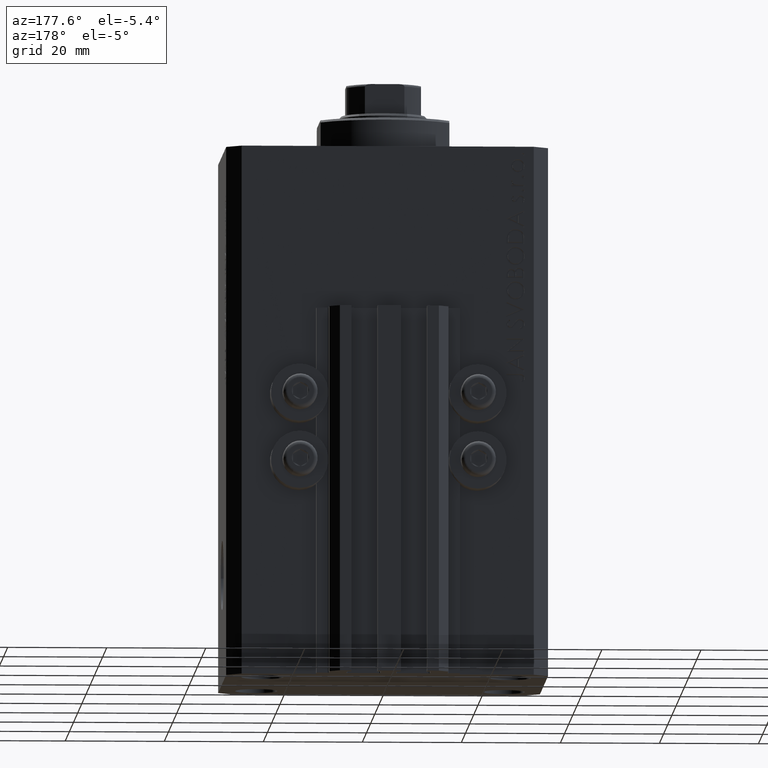
[diagram: clean part render]
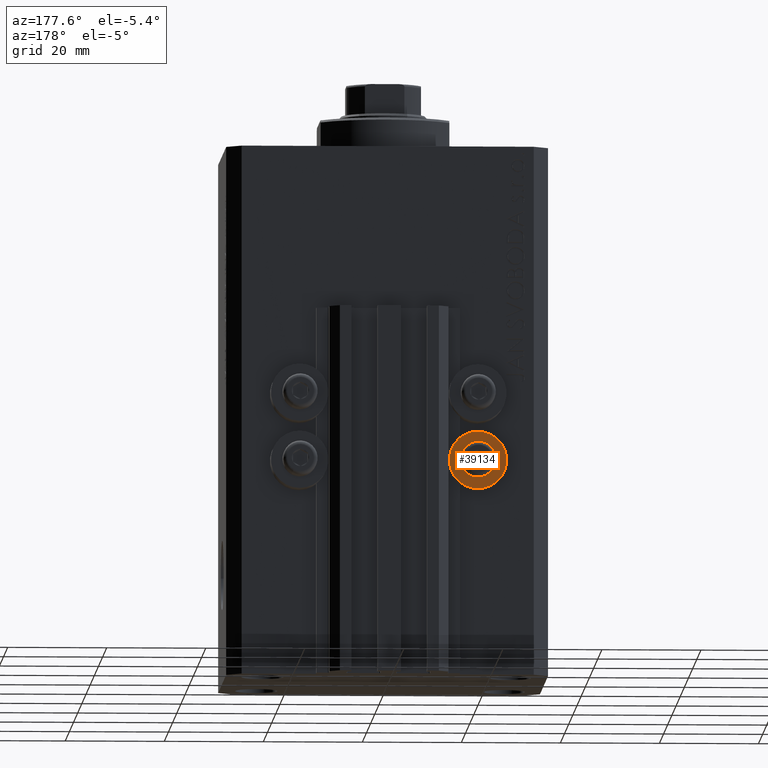
[diagram: same view with one face highlighted and labeled with its STEP entity id]
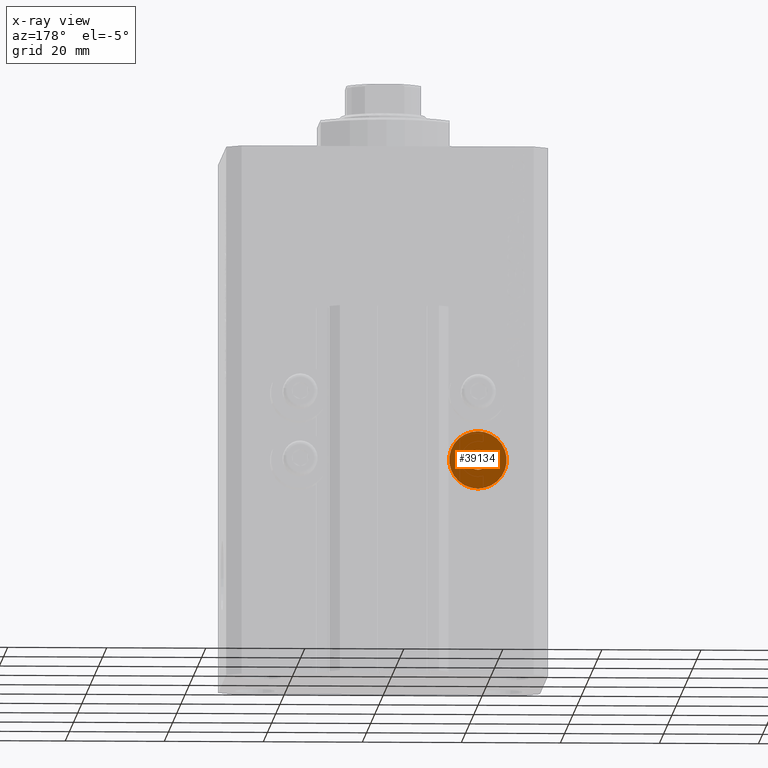
[diagram: x-ray of the same camera — body ghosted, the highlighted face saturated]
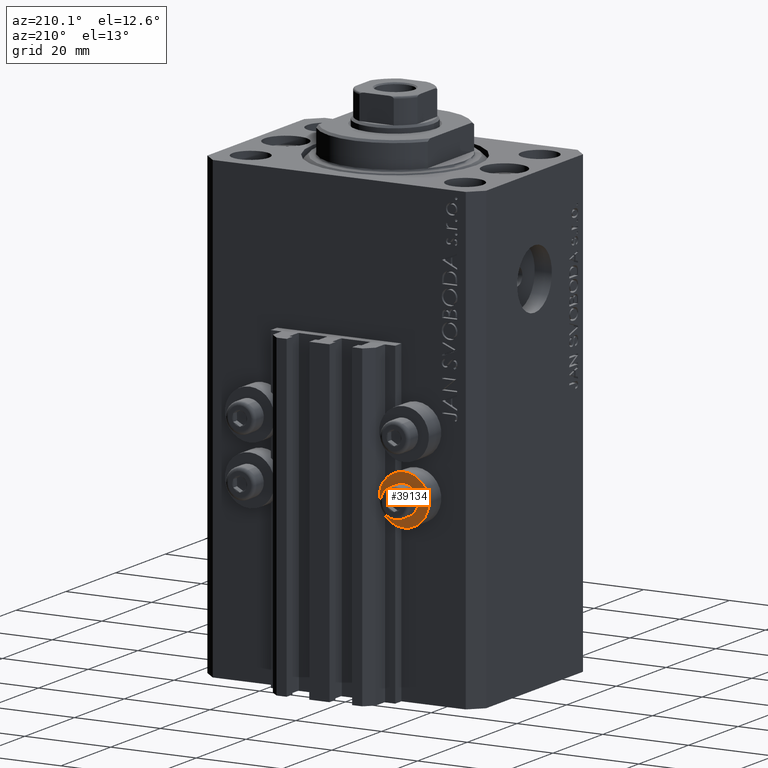
[diagram: same view with one face highlighted and labeled with its STEP entity id]
A machine part, auxiliary view. The second image highlights one B-rep face of the part: STEP entity #39134.
The next image is the same camera in x-ray: the body ghosted, the highlighted face saturated — about 0% of this face is hidden behind the body in this view.
A second angle (auxiliary view) of the same face is appended — the face is thin or edge-on in the first view.
In plain terms, the highlighted planar face has unit normal (0, -1, 0).
Its self-contained STEP definition (entity closure, byte-faithful):
#261 = CARTESIAN_POINT ( 'NONE',  ( -18.00000000000000355, 27.49999999996051514, -62.00000000000000000 ) ) ;
#390 = EDGE_CURVE ( 'NONE', #18551, #41907, #4273, .T. ) ;
#907 = CIRCLE ( 'NONE', #14612, 5.799999999999999822 ) ;
#2386 = DIRECTION ( 'NONE',  ( -0.000000000000000000, -1.000000000000000000, -0.000000000000000000 ) ) ;
#2475 = CARTESIAN_POINT ( 'NONE',  ( -18.00000000000000355, 27.49999999996051514, -64.00000000000000000 ) ) ;
#2870 = CIRCLE ( 'NONE', #46320, 2.000000000000001776 ) ;
#3981 = VERTEX_POINT ( 'NONE', #45229 ) ;
#4273 = CIRCLE ( 'NONE', #15685, 2.000000000000001776 ) ;
#4771 = EDGE_CURVE ( 'NONE', #35098, #3981, #37187, .T. ) ;
#7685 = CARTESIAN_POINT ( 'NONE',  ( -18.00000000000000355, 27.49999999996051514, -64.00000000000000000 ) ) ;
#8342 = EDGE_CURVE ( 'NONE', #41907, #18551, #2870, .T. ) ;
#13142 = PLANE ( 'NONE',  #45510 ) ;
#14612 = AXIS2_PLACEMENT_3D ( 'NONE', #2475, #16763, #20342 ) ;
#14819 = DIRECTION ( 'NONE',  ( -0.000000000000000000, -1.000000000000000000, -0.000000000000000000 ) ) ;
#14940 = DIRECTION ( 'NONE',  ( -0.000000000000000000, -1.000000000000000000, -0.000000000000000000 ) ) ;
#15633 = DIRECTION ( 'NONE',  ( 0.000000000000000000, 0.000000000000000000, -1.000000000000000000 ) ) ;
#15685 = AXIS2_PLACEMENT_3D ( 'NONE', #7685, #14819, #37031 ) ;
#15873 = CARTESIAN_POINT ( 'NONE',  ( -18.00000000000000355, 27.49999999996051514, -64.00000000000000000 ) ) ;
#16763 = DIRECTION ( 'NONE',  ( -0.000000000000000000, -1.000000000000000000, -0.000000000000000000 ) ) ;
#18551 = VERTEX_POINT ( 'NONE', #19244 ) ;
#19142 = EDGE_CURVE ( 'NONE', #3981, #35098, #907, .T. ) ;
#19244 = CARTESIAN_POINT ( 'NONE',  ( -18.00000000000000355, 27.49999999996051514, -66.00000000000000000 ) ) ;
#20151 = ORIENTED_EDGE ( 'NONE', *, *, #390, .T. ) ;
#20342 = DIRECTION ( 'NONE',  ( 0.000000000000000000, 0.000000000000000000, -1.000000000000000000 ) ) ;
#22349 = ORIENTED_EDGE ( 'NONE', *, *, #19142, .F. ) ;
#23538 = CARTESIAN_POINT ( 'NONE',  ( -18.00000000000000355, 27.49999999996051514, -69.79999999999999716 ) ) ;
#24101 = DIRECTION ( 'NONE',  ( 0.000000000000000000, 0.000000000000000000, 1.000000000000000000 ) ) ;
#24300 = DIRECTION ( 'NONE',  ( 0.000000000000000000, 0.000000000000000000, -1.000000000000000000 ) ) ;
#27674 = CARTESIAN_POINT ( 'NONE',  ( -12.20000000000000284, 27.49999999996051514, -64.00000000000000000 ) ) ;
#28761 = AXIS2_PLACEMENT_3D ( 'NONE', #42480, #2386, #24300 ) ;
#28957 = EDGE_LOOP ( 'NONE', ( #32983, #22349 ) ) ;
#32158 = ORIENTED_EDGE ( 'NONE', *, *, #8342, .T. ) ;
#32983 = ORIENTED_EDGE ( 'NONE', *, *, #4771, .F. ) ;
#33183 = EDGE_LOOP ( 'NONE', ( #32158, #20151 ) ) ;
#34853 = FACE_BOUND ( 'NONE', #33183, .T. ) ;
#35098 = VERTEX_POINT ( 'NONE', #23538 ) ;
#37031 = DIRECTION ( 'NONE',  ( 0.000000000000000000, 0.000000000000000000, -1.000000000000000000 ) ) ;
#37187 = CIRCLE ( 'NONE', #28761, 5.799999999999999822 ) ;
#39134 = ADVANCED_FACE ( 'NONE', ( #34853, #45861 ), #13142, .F. ) ;
#41907 = VERTEX_POINT ( 'NONE', #261 ) ;
#42276 = DIRECTION ( 'NONE',  ( 0.000000000000000000, -1.000000000000000000, 0.000000000000000000 ) ) ;
#42480 = CARTESIAN_POINT ( 'NONE',  ( -18.00000000000000355, 27.49999999996051514, -64.00000000000000000 ) ) ;
#45229 = CARTESIAN_POINT ( 'NONE',  ( -18.00000000000000355, 27.49999999996051514, -58.20000000000000284 ) ) ;
#45510 = AXIS2_PLACEMENT_3D ( 'NONE', #27674, #42276, #24101 ) ;
#45861 = FACE_OUTER_BOUND ( 'NONE', #28957, .T. ) ;
#46320 = AXIS2_PLACEMENT_3D ( 'NONE', #15873, #14940, #15633 ) ;